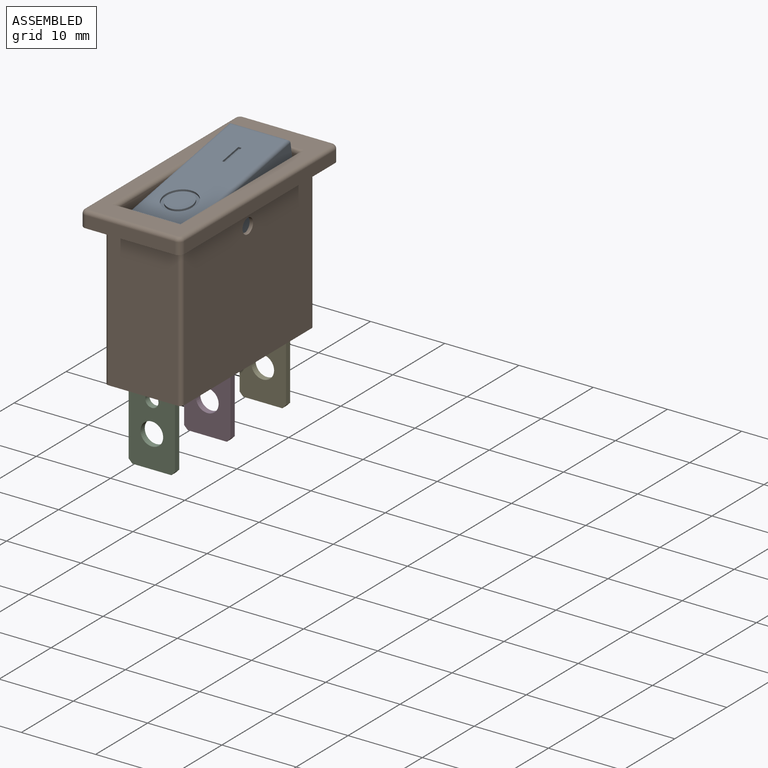
[diagram: assembled view]
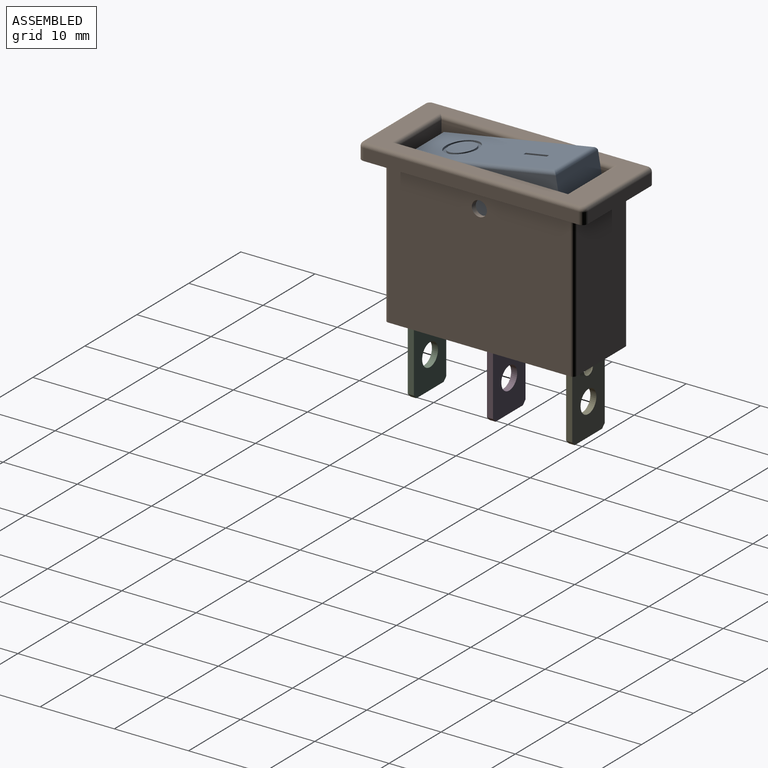
[diagram: assembled view, second angle]
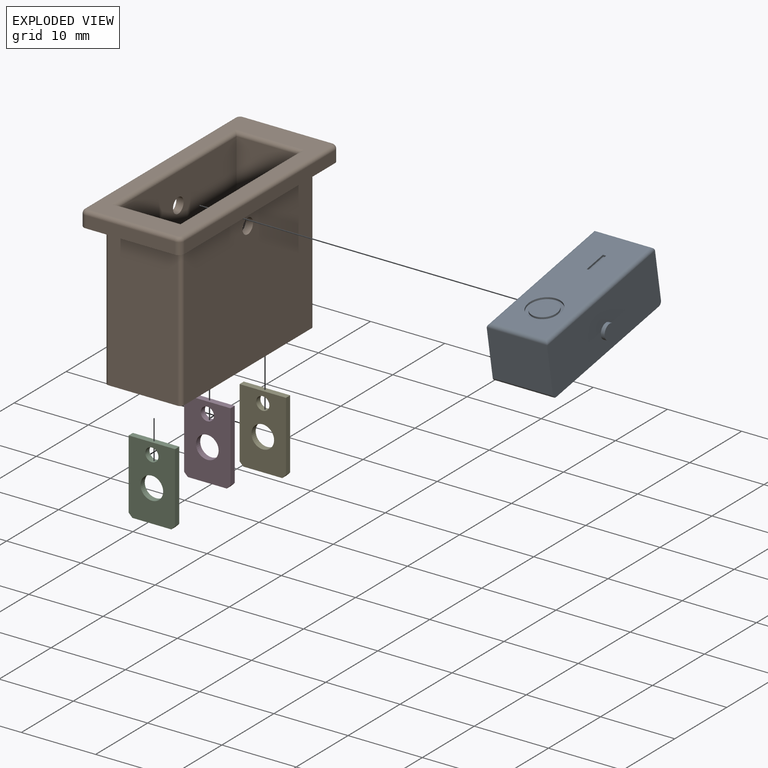
[diagram: exploded view]
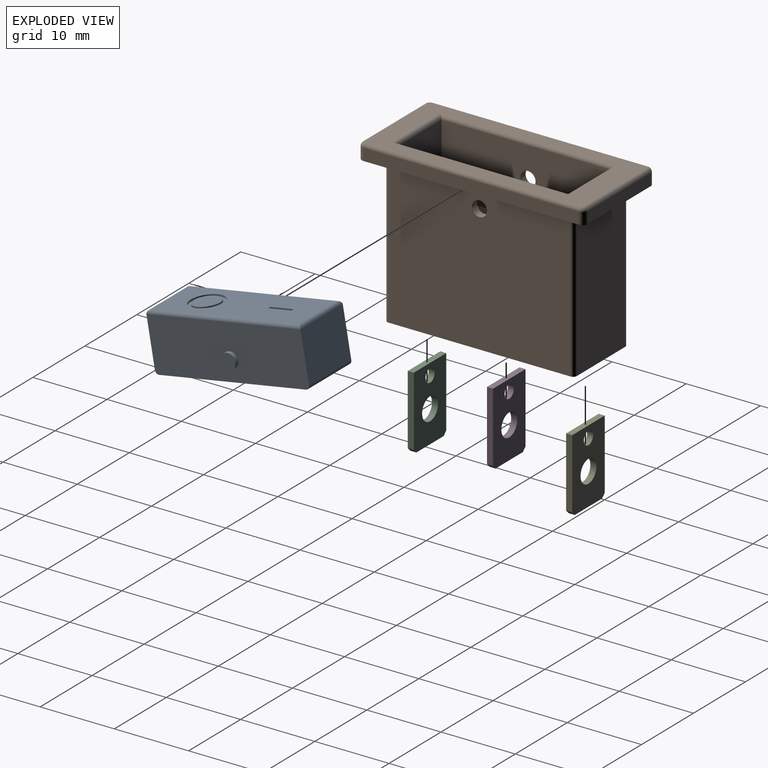
[diagram: exploded view, second angle]
ASSEMBLY  parts=5 mates=4
PART A: 25 faces, bbox 9.1x21.1x7.6 mm
  f0: plane 20.07x7.11mm, normal (0,0,1), area 125.9mm2, adj f11,f14,f15,f16,f17,f21,f22,f23
  f1: plane 8.13x6.6mm, normal (0,-1,0), area 53.7mm2, adj f4,f5,f19,f21
  f2: plane 20.07x8.13mm, normal (0,0,-1), area 163.1mm2, adj f4,f5,f19,f20
  f3: plane 8.13x6.6mm, normal (0,1,0), area 53.7mm2, adj f4,f5,f20,f24
  f4: plane 21.08x7.11mm, normal (1,0,0), area 146.6mm2, adj f1,f2,f3,f6,f19,f20,f22
  f5: plane 21.08x7.11mm, normal (-1,0,0), area 146.6mm2, adj f1,f2,f3,f8,f19,f20,f23
  f6: cylinder r=1.02mm len=2.03mm, axis (-1,0,0), area 3.2mm2, adj f4,f7
  f7: plane 2.03x2.03mm, normal (1,0,0), area 3.2mm2, adj f6
  f8: cylinder r=1.02mm len=2.03mm, axis (1,0,0), area 3.2mm2, adj f5,f9
  f9: plane 2.03x2.03mm, normal (-1,0,0), area 3.2mm2, adj f8
  f10: cylinder r=1.79mm len=3.57mm, axis (0,0,1), area 2.8mm2, adj f12,f13
  f11: cylinder r=2.22mm len=4.43mm, axis (0,0,1), area 3.5mm2, adj f0,f12
  f12: plane 4.43x4.43mm, normal (0,0,1), area 5.4mm2, adj f10,f11
  f13: plane 3.57x3.57mm, normal (0,0,1), area 10mm2, adj f10
  f14: plane 3.18x0.25mm, normal (-1,0,0), area 0.8mm2, adj f0,f15,f17,f18
  f15: plane 0.43x0.25mm, normal (0,-1,0), area 0.1mm2, adj f0,f14,f16,f18
  f16: plane 3.18x0.25mm, normal (1,0,0), area 0.8mm2, adj f0,f15,f17,f18
  f17: plane 0.43x0.25mm, normal (0,1,0), area 0.1mm2, adj f0,f14,f16,f18
  f18: plane 3.18x0.43mm, normal (0,0,1), area 1.4mm2, adj f14,f15,f16,f17
  f19: cylinder r=0.51mm len=8.13mm, axis (1,0,0), area 6.5mm2, adj f1,f2,f4,f5
  f20: cylinder r=0.51mm len=8.13mm, axis (-1,0,0), area 6.5mm2, adj f2,f3,f4,f5
  f21: cylinder r=0.51mm len=8.13mm, axis (-1,0,0), area 6.2mm2, adj f0,f1,f22,f23
  f22: cylinder r=0.51mm len=21.08mm, axis (0,1,0), area 16.5mm2, adj f0,f4,f21,f24
  f23: cylinder r=0.51mm len=21.08mm, axis (0,-1,0), area 16.5mm2, adj f0,f5,f21,f24
  f24: cylinder r=0.51mm len=8.13mm, axis (1,0,0), area 6.2mm2, adj f0,f3,f22,f23
PART B: 53 faces, bbox 13.5x30.5x21.8 mm
  f0: plane 25.55x10.34mm, normal (0,0,-1), area 248.6mm2, adj f7,f8,f9,f10,f34,f35,f36,f37
  f1: plane 29.46x12.52mm, normal (0,0,1), area 144.5mm2, adj f22,f23,f24,f25,f26,f27,f28,f29
  f2: plane 12.01x1.57mm, normal (0,-1,0), area 18.9mm2, adj f6,f18,f21,f27
  f3: plane 28.96x1.57mm, normal (1,0,0), area 45.6mm2, adj f6,f18,f19,f28
  f4: plane 12.01x1.57mm, normal (0,1,0), area 18.9mm2, adj f6,f19,f20,f24
  f5: plane 28.96x1.57mm, normal (-1,0,0), area 45.6mm2, adj f6,f20,f21,f23
  f6: plane 30.48x13.54mm, normal (0,0,-1), area 148.2mm2, adj f2,f3,f4,f5,f7,f8,f9,f10
  f7: plane 19.69x9.32mm, normal (0,-1,0), area 183.5mm2, adj f0,f6,f34,f37
  f8: plane 24.54x19.69mm, normal (-1,0,0), area 479.8mm2, adj f0,f6,f16,f34,f35
  f9: plane 19.69x9.32mm, normal (0,1,0), area 183.5mm2, adj f0,f6,f35,f36
  f10: plane 24.54x19.69mm, normal (1,0,0), area 479.8mm2, adj f0,f6,f17,f36,f37
  f11: plane 9.14x8.38mm, normal (0,1,0), area 76.6mm2, adj f12,f14,f15,f30
  f12: plane 22.86x9.14mm, normal (-1,0,0), area 205.8mm2, adj f11,f13,f15,f17,f31
  f13: plane 9.14x8.38mm, normal (0,-1,0), area 76.6mm2, adj f12,f14,f15,f33
  f14: plane 22.86x9.14mm, normal (1,0,0), area 205.8mm2, adj f11,f13,f15,f16,f32
  f15: plane 22.86x8.38mm, normal (0,0,1), area 191.6mm2, adj f11,f12,f13,f14
  f16: cylinder r=1.02mm len=2.03mm, axis (1,0,0), area 6.2mm2, adj f8,f14
  f17: cylinder r=1.02mm len=2.03mm, axis (1,0,0), area 6.2mm2, adj f10,f12
  f18: cylinder r=0.76mm len=1.57mm, axis (0,0,1), area 1.9mm2, adj f2,f3,f6,f29
  f19: cylinder r=0.76mm len=1.57mm, axis (0,0,-1), area 1.9mm2, adj f3,f4,f6,f26
  f20: cylinder r=0.76mm len=1.57mm, axis (0,0,1), area 1.9mm2, adj f4,f5,f6,f22
  f21: cylinder r=0.76mm len=1.57mm, axis (0,0,-1), area 1.9mm2, adj f2,f5,f6,f25
  f22: torus R=0.25mm, axis (0,0,1), area 0.7mm2, adj f1,f20,f23,f24
  f23: cylinder r=0.51mm len=28.96mm, axis (0,1,0), area 23.1mm2, adj f1,f5,f22,f25
  f24: cylinder r=0.51mm len=12.01mm, axis (1,0,0), area 9.6mm2, adj f1,f4,f22,f26
  f25: torus R=0.25mm, axis (0,0,1), area 0.7mm2, adj f1,f21,f23,f27
  f26: torus R=0.25mm, axis (0,0,1), area 0.7mm2, adj f1,f19,f24,f28
  f27: cylinder r=0.51mm len=12.01mm, axis (-1,0,0), area 9.6mm2, adj f1,f2,f25,f29
  f28: cylinder r=0.51mm len=28.96mm, axis (0,-1,0), area 23.1mm2, adj f1,f3,f26,f29
  f29: torus R=0.25mm, axis (0,0,1), area 0.7mm2, adj f1,f18,f27,f28
  f30: cylinder r=0.51mm len=9.4mm, axis (-1,0,0), area 7mm2, adj f1,f11,f31,f32
  f31: cylinder r=0.51mm len=23.88mm, axis (0,-1,0), area 18.5mm2, adj f1,f12,f30,f33
  f32: cylinder r=0.51mm len=23.88mm, axis (0,1,0), area 18.5mm2, adj f1,f14,f30,f33
  f33: cylinder r=0.51mm len=9.4mm, axis (1,0,0), area 7mm2, adj f1,f13,f31,f32
  f34: cylinder r=0.51mm len=19.69mm, axis (0,0,-1), area 15.7mm2, adj f0,f6,f7,f8
  f35: cylinder r=0.51mm len=19.69mm, axis (0,0,1), area 15.7mm2, adj f0,f6,f8,f9
  f36: cylinder r=0.51mm len=19.69mm, axis (0,0,-1), area 15.7mm2, adj f0,f6,f9,f10
  f37: cylinder r=0.51mm len=19.69mm, axis (0,0,1), area 15.7mm2, adj f0,f6,f7,f10
  f38: plane 0.81x0.25mm, normal (1,0,0), area 0.2mm2, adj f0,f39,f41,f42
  f39: plane 6.3x0.25mm, normal (0,-1,0), area 1.6mm2, adj f0,f38,f40,f42
  f40: plane 0.81x0.25mm, normal (-1,0,0), area 0.2mm2, adj f0,f39,f41,f42
  f41: plane 6.3x0.25mm, normal (0,1,0), area 1.6mm2, adj f0,f38,f40,f42
  f42: plane 6.3x0.81mm, normal (0,0,-1), area 5.1mm2, adj f38,f39,f40,f41
  f43: plane 0.81x0.25mm, normal (1,0,0), area 0.2mm2, adj f0,f44,f46,f47
  f44: plane 6.3x0.25mm, normal (0,-1,0), area 1.6mm2, adj f0,f43,f45,f47
  f45: plane 0.81x0.25mm, normal (-1,0,0), area 0.2mm2, adj f0,f44,f46,f47
  f46: plane 6.3x0.25mm, normal (0,1,0), area 1.6mm2, adj f0,f43,f45,f47
  f47: plane 6.3x0.81mm, normal (0,0,-1), area 5.1mm2, adj f43,f44,f45,f46
  f48: plane 0.81x0.25mm, normal (1,0,0), area 0.2mm2, adj f0,f49,f51,f52
  f49: plane 6.3x0.25mm, normal (0,-1,0), area 1.6mm2, adj f0,f48,f50,f52
  f50: plane 0.81x0.25mm, normal (-1,0,0), area 0.2mm2, adj f0,f49,f51,f52
  f51: plane 6.3x0.25mm, normal (0,1,0), area 1.6mm2, adj f0,f48,f50,f52
  f52: plane 6.3x0.81mm, normal (0,0,-1), area 5.1mm2, adj f48,f49,f50,f51
PART C: 10 faces, bbox 6.2x9.9x0.8 mm
  f0: plane 0.81x0.51mm, normal (0.71,0.7,0), area 0.6mm2, adj f1,f7,f8,f9
  f1: plane 5.25x0.81mm, normal (0,1,0), area 4.3mm2, adj f0,f2,f8,f9
  f2: plane 0.81x0.51mm, normal (-0.71,0.7,0), area 0.6mm2, adj f1,f3,f8,f9
  f3: plane 9.4x0.81mm, normal (-1,0,0), area 7.6mm2, adj f2,f4,f8,f9
  f4: plane 6.25x0.81mm, normal (0,-1,0), area 5.1mm2, adj f3,f7,f8,f9
  f5: cylinder r=1.52mm len=3.05mm, axis (0,0,-1), area 7.8mm2, adj f8,f9
  f6: cylinder r=0.89mm len=1.78mm, axis (0,0,-1), area 4.5mm2, adj f8,f9
  f7: plane 9.4x0.81mm, normal (1,0,0), area 7.6mm2, adj f0,f4,f8,f9
  f8: plane 9.91x6.25mm, normal (0,0,1), area 51.9mm2, adj f0,f1,f2,f3,f4,f5,f6,f7
  f9: plane 9.91x6.25mm, normal (0,0,-1), area 51.9mm2, adj f0,f1,f2,f3,f4,f5,f6,f7
PART D: same geometry as C
PART E: same geometry as C
PLACE A rot(axis=(1,0,0),10deg) t=(-0.19,-45.6,56.78)mm
PLACE B t=(3.74,-0.61,24.31)mm fixed
PLACE C rot(axis=(-1,0,0),90deg) t=(-22.2,-13.76,-35.55)mm
PLACE D rot(axis=(-1,0,0),90deg) t=(-22.2,-3.09,-35.55)mm
PLACE E rot(axis=(-1,0,0),90deg) t=(-22.2,7.57,-35.55)mm
MATE fastened C.f4 <-> B.f42  axis (0,0,1) through (3.74,-11.27,4.88)mm
MATE fastened D.f4 <-> B.f47  axis (0,0,1) through (3.74,-0.61,4.88)mm
MATE revolute B.f16 <-> A.f8  axis (1,0,0) through (-0.45,-0.61,21.77)mm
MATE fastened E.f4 <-> B.f52  axis (0,0,1) through (3.74,10.06,4.88)mm
